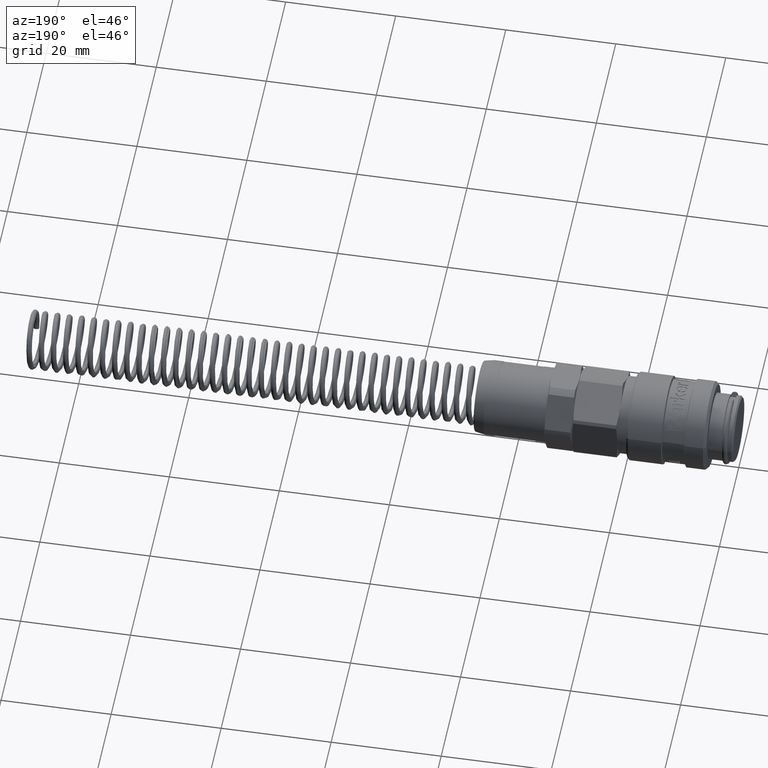
[diagram: clean part render]
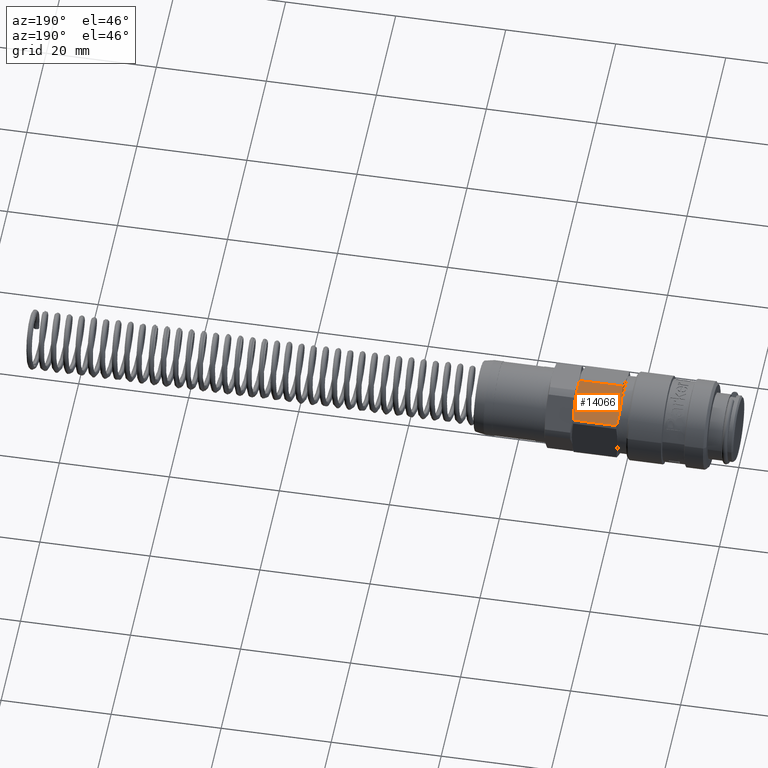
[diagram: same view with one face highlighted and labeled with its STEP entity id]
A machine part, auxiliary view. The second image highlights one B-rep face of the part: STEP entity #14066.
In plain terms, the highlighted planar face has unit normal (0, -0.5258, -0.8506).
Its self-contained STEP definition (entity closure, byte-faithful):
#12948=CARTESIAN_POINT('',(29.100000000000019,3.680301070243521,5.954442377953152));
#12949=VERTEX_POINT('',#12948);
#13585=CARTESIAN_POINT('',(20.800000000000018,3.68030107024352,5.954442377953151));
#13586=VERTEX_POINT('',#13585);
#13987=CARTESIAN_POINT('',(19.746630622762417,3.68030107024352,5.95444237795315));
#13988=DIRECTION('',(1.978579E-016,-0.525757295749074,-0.850634625421879));
#13989=DIRECTION('',(8.718866E-017,-0.850634625421879,0.525757295749074));
#13990=AXIS2_PLACEMENT_3D('',#13987,#13988,#13989);
#13991=PLANE('',#13990);
#13992=CARTESIAN_POINT('',(21.041154273188027,6.795296729407809,4.029136676671502));
#13993=VERTEX_POINT('',#13992);
#13994=CARTESIAN_POINT('',(20.800000000000018,3.680301070243519,5.954442377953151));
#13995=CARTESIAN_POINT('',(20.800000000000018,5.14372184971668,5.049936343793985));
#13996=CARTESIAN_POINT('',(21.041154273188027,6.795296729407809,4.029136676671502));
#14004=(BOUNDED_CURVE()B_SPLINE_CURVE(2,(#13994,#13995,#13996),.UNSPECIFIED.,.F.,.U.)B_SPLINE_CURVE_WITH_KNOTS((3,3),(0.367169590188575,0.73433918037715),.UNSPECIFIED.)CURVE()GEOMETRIC_REPRESENTATION_ITEM()RATIONAL_B_SPLINE_CURVE((1.0,1.031642241421748,1.0))REPRESENTATION_ITEM(''));
#14005=EDGE_CURVE('',#13586,#13993,#14004,.T.);
#14006=ORIENTED_EDGE('',*,*,#14005,.F.);
#14007=CARTESIAN_POINT('',(21.041154273188027,0.56530541107923,7.879748079234799));
#14008=VERTEX_POINT('',#14007);
#14009=CARTESIAN_POINT('',(21.041154273188027,0.56530541107923,7.879748079234799));
#14010=CARTESIAN_POINT('',(20.800000000000018,2.216880290770358,6.858948412112317));
#14011=CARTESIAN_POINT('',(20.800000000000018,3.680301070243519,5.954442377953151));
#14019=(BOUNDED_CURVE()B_SPLINE_CURVE(2,(#14009,#14010,#14011),.UNSPECIFIED.,.F.,.U.)B_SPLINE_CURVE_WITH_KNOTS((3,3),(0.0,0.367169590188575),.UNSPECIFIED.)CURVE()GEOMETRIC_REPRESENTATION_ITEM()RATIONAL_B_SPLINE_CURVE((1.0,1.031642241421748,1.0))REPRESENTATION_ITEM(''));
#14020=EDGE_CURVE('',#14008,#13586,#14019,.T.);
#14021=ORIENTED_EDGE('',*,*,#14020,.F.);
#14022=CARTESIAN_POINT('',(28.85884572681201,0.565305411079231,7.879748079234799));
#14023=VERTEX_POINT('',#14022);
#14024=CARTESIAN_POINT('',(28.858845726812007,0.565305411079231,7.879748079234799));
#14025=DIRECTION('',(-1.0,0.0,0.0));
#14026=VECTOR('',#14025,7.817691453623979);
#14027=LINE('',#14024,#14026);
#14028=EDGE_CURVE('',#14023,#14008,#14027,.T.);
#14029=ORIENTED_EDGE('',*,*,#14028,.F.);
#14030=CARTESIAN_POINT('',(29.100000000000019,3.680301070243521,5.954442377953152));
#14031=CARTESIAN_POINT('',(29.100000000000019,2.216880290770375,6.858948412112308));
#14032=CARTESIAN_POINT('',(28.85884572681201,0.565305411079237,7.879748079234798));
#14040=(BOUNDED_CURVE()B_SPLINE_CURVE(2,(#14030,#14031,#14032),.UNSPECIFIED.,.F.,.U.)B_SPLINE_CURVE_WITH_KNOTS((3,3),(0.367169590188574,0.734339180377148),.UNSPECIFIED.)CURVE()GEOMETRIC_REPRESENTATION_ITEM()RATIONAL_B_SPLINE_CURVE((1.0,1.031642241421763,1.0))REPRESENTATION_ITEM(''));
#14041=EDGE_CURVE('',#12949,#14023,#14040,.T.);
#14042=ORIENTED_EDGE('',*,*,#14041,.F.);
#14043=CARTESIAN_POINT('',(28.85884572681201,6.79529672940781,4.029136676671504));
#14044=VERTEX_POINT('',#14043);
#14045=CARTESIAN_POINT('',(28.85884572681201,6.795296729407802,4.029136676671508));
#14046=CARTESIAN_POINT('',(29.100000000000019,5.143721849716664,5.049936343793996));
#14047=CARTESIAN_POINT('',(29.100000000000019,3.680301070243521,5.954442377953152));
#14055=(BOUNDED_CURVE()B_SPLINE_CURVE(2,(#14045,#14046,#14047),.UNSPECIFIED.,.F.,.U.)B_SPLINE_CURVE_WITH_KNOTS((3,3),(0.0,0.367169590188574),.UNSPECIFIED.)CURVE()GEOMETRIC_REPRESENTATION_ITEM()RATIONAL_B_SPLINE_CURVE((1.0,1.031642241421791,1.0))REPRESENTATION_ITEM(''));
#14056=EDGE_CURVE('',#14044,#12949,#14055,.T.);
#14057=ORIENTED_EDGE('',*,*,#14056,.F.);
#14058=CARTESIAN_POINT('',(21.041154273188027,6.795296729407808,4.029136676671502));
#14059=DIRECTION('',(1.0,0.0,0.0));
#14060=VECTOR('',#14059,7.817691453623979);
#14061=LINE('',#14058,#14060);
#14062=EDGE_CURVE('',#13993,#14044,#14061,.T.);
#14063=ORIENTED_EDGE('',*,*,#14062,.F.);
#14064=EDGE_LOOP('',(#14006,#14021,#14029,#14042,#14057,#14063));
#14065=FACE_OUTER_BOUND('',#14064,.T.);
#14066=ADVANCED_FACE('',(#14065),#13991,.F.);